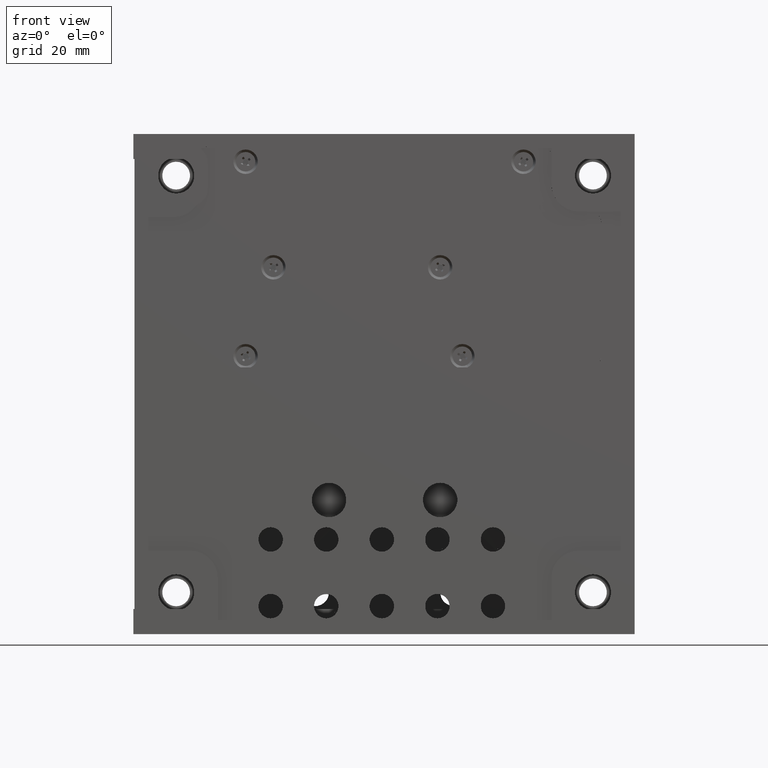
[diagram: clean part render]
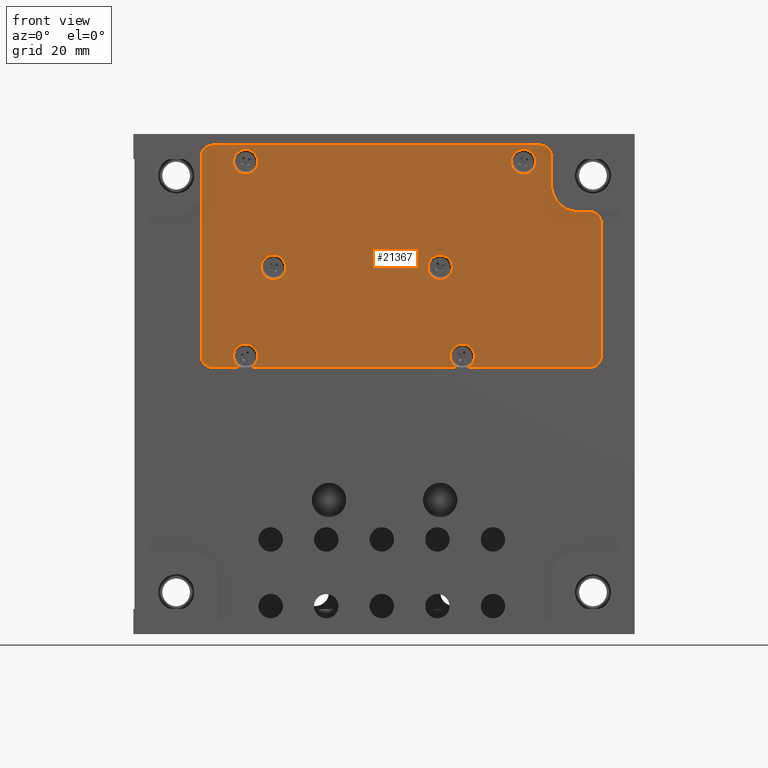
[diagram: same view with one face highlighted and labeled with its STEP entity id]
A machine part, front view. The second image highlights one B-rep face of the part: STEP entity #21367.
In plain terms, the highlighted planar face has unit normal (-0, -1, -0).
Its self-contained STEP definition (entity closure, byte-faithful):
#91 = CARTESIAN_POINT ( 'NONE',  ( 13.47279043342577154, -1.773152104537589898E-14, 87.93125104479028664 ) ) ;
#147 = VERTEX_POINT ( 'NONE', #19742 ) ;
#198 = CARTESIAN_POINT ( 'NONE',  ( 83.21914732197373610, -1.685304695499233557E-14, 48.39082520775689744 ) ) ;
#489 = ORIENTED_EDGE ( 'NONE', *, *, #25855, .T. ) ;
#700 = B_SPLINE_CURVE_WITH_KNOTS ( 'NONE', 3,
 ( #19382, #6346, #24060, #21720, #26705, #3707, #23776, #15444, #15287, #3841, #10585, #26271, #8406, #22015, #8249, #6490, #10881, #21582, #17193, #19525, #17348, #4275, #6197, #3985, #21863, #4134, #19676, #8537, #1942, #7215, #27144, #4710, #13384, #13817, #16150, #13968, #11765 ),
 .UNSPECIFIED., .F., .F.,
 ( 4, 1, 1, 1, 1, 2, 2, 1, 2, 2, 2, 1, 2, 2, 1, 1, 2, 2, 1, 1, 1, 2, 2, 4 ),
 ( 0.000000000000000000, 0.1249999999999968081, 0.1874999999999952260, 0.2187499999999951983, 0.2343749999999977796, 0.2421874999999981404, 0.2499999999999985012, 0.3125000000000098255, 0.3437500000000154876, 0.3750000000000210942, 0.5000000000000367484, 0.5625000000000446310, 0.5937500000000465183, 0.6250000000000485167, 0.6875000000000509592, 0.7187500000000521805, 0.7343750000000504041, 0.7500000000000486278, 0.8125000000000406342, 0.8437500000000366374, 0.8593750000000371925, 0.8671875000000355271, 0.8750000000000337508, 1.000000000000000000 ),
 .UNSPECIFIED. ) ;
#830 = CARTESIAN_POINT ( 'NONE',  ( 13.99999999999999822, -1.332480409083599529E-14, 48.00000000000000711 ) ) ;
#863 = VERTEX_POINT ( 'NONE', #17073 ) ;
#938 = CARTESIAN_POINT ( 'NONE',  ( 55.00000000000002132, -1.396098132513648451E-10, 63.79999999987012416 ) ) ;
#985 = CARTESIAN_POINT ( 'NONE',  ( 13.74549697485781863, -1.331199108243594114E-14, 47.99999999999999289 ) ) ;
#1024 = CARTESIAN_POINT ( 'NONE',  ( 55.00000000000002132, -1.396101792989891400E-10, 66.00000000000000000 ) ) ;
#1138 = ORIENTED_EDGE ( 'NONE', *, *, #26465, .T. ) ;
#1433 = VERTEX_POINT ( 'NONE', #28953 ) ;
#1489 = CARTESIAN_POINT ( 'NONE',  ( 75.00000000000001421, -1.639586193765947355E-14, 48.00000000000000711 ) ) ;
#1723 = CARTESIAN_POINT ( 'NONE',  ( 83.87109570898179811, -1.980750450096876624E-14, 74.70657440703342900 ) ) ;
#1766 = CARTESIAN_POINT ( 'NONE',  ( 12.06874895520969027, -1.339108743522042283E-14, 49.47279043341901428 ) ) ;
#1875 = CARTESIAN_POINT ( 'NONE',  ( 75.00000000000001421, -2.083675403616009340E-14, 88.00000000000000000 ) ) ;
#1942 = CARTESIAN_POINT ( 'NONE',  ( 75.21324006400163853, -1.990817581741827673E-14, 79.53941312836437305 ) ) ;
#2021 = EDGE_CURVE ( 'NONE', #27095, #5212, #28392, .T. ) ;
#2068 = ORIENTED_EDGE ( 'NONE', *, *, #19214, .T. ) ;
#2416 = CARTESIAN_POINT ( 'NONE',  ( 82.70657440703118368, -1.679816230040040171E-14, 48.12890429101817347 ) ) ;
#2548 = EDGE_LOOP ( 'NONE', ( #6741 ) ) ;
#2611 = CARTESIAN_POINT ( 'NONE',  ( 73.95432093515839256, -2.075749351636787746E-14, 87.76026810416848889 ) ) ;
#2746 = CARTESIAN_POINT ( 'NONE',  ( 12.13408272265252208, -1.337295475276198389E-14, 49.27983888886678443 ) ) ;
#2906 = CARTESIAN_POINT ( 'NONE',  ( 74.75812579856527407, -2.071273766250564018E-14, 86.99264234696104836 ) ) ;
#3207 = AXIS2_PLACEMENT_3D ( 'NONE', #1024, #12469, #9965 ) ;
#3326 = EDGE_CURVE ( 'NONE', #13170, #863, #4361, .T. ) ;
#3340 = ORIENTED_EDGE ( 'NONE', *, *, #12965, .T. ) ;
#3686 = CARTESIAN_POINT ( 'NONE',  ( 58.08348486088994633, -1.584347703848919033E-15, 47.99999999996163069 ) ) ;
#3707 = CARTESIAN_POINT ( 'NONE',  ( 78.28918674659972510, -1.970355024919308721E-14, 76.30146234016491746 ) ) ;
#3816 = DIRECTION ( 'NONE',  ( 1.000000000000000000, -5.034521060366369800E-17, 3.154042683473176857E-15 ) ) ;
#3841 = CARTESIAN_POINT ( 'NONE',  ( 78.00258072186043989, -1.970152339783371310E-14, 76.41317313197255601 ) ) ;
#3909 = ORIENTED_EDGE ( 'NONE', *, *, #15377, .T. ) ;
#3936 = CARTESIAN_POINT ( 'NONE',  ( 75.00000000000001421, -2.005959791892248382E-14, 80.99999999999998579 ) ) ;
#3985 = CARTESIAN_POINT ( 'NONE',  ( 75.46662622193423431, -1.984859154490314905E-14, 78.88782285870017574 ) ) ;
#4134 = CARTESIAN_POINT ( 'NONE',  ( 75.38266676738140859, -1.986582790992169766E-14, 79.08114727158037738 ) ) ;
#4153 = CARTESIAN_POINT ( 'NONE',  ( 11.99999999999999645, -1.344615827455369748E-14, 50.00000000000000711 ) ) ;
#4214 = FACE_BOUND ( 'NONE', #23144, .T. ) ;
#4248 = EDGE_CURVE ( 'NONE', #4328, #20135, #27242, .T. ) ;
#4275 = CARTESIAN_POINT ( 'NONE',  ( 75.72264362092202816, -1.980790091696618187E-14, 78.40521822324589607 ) ) ;
#4292 = EDGE_CURVE ( 'NONE', #5331, #5331, #11812, .T. ) ;
#4328 = VERTEX_POINT ( 'NONE', #19816 ) ;
#4348 = CARTESIAN_POINT ( 'NONE',  ( 83.89797362498134703, -1.980059801468136201E-14, 74.63217799797165242 ) ) ;
#4361 = B_SPLINE_CURVE_WITH_KNOTS ( 'NONE', 3,
 ( #15750, #20421, #24672, #6669, #22485, #24528, #2416, #11346, #20276, #198, #9150, #27022, #15906, #9297, #18246, #27180, #7110, #14589, #14441, #27740 ),
 .UNSPECIFIED., .F., .F.,
 ( 4, 1, 1, 1, 2, 2, 2, 1, 1, 1, 2, 2, 4 ),
 ( 0.000000000000000000, 0.1250000000000141553, 0.1875000000000150713, 0.2187500000000088818, 0.2343750000000046907, 0.2500000000000004996, 0.4999999999999775180, 0.6249999999999659162, 0.6874999999999663602, 0.7187499999999723554, 0.7343749999999753530, 0.7499999999999783507, 1.000000000000000000 ),
 .UNSPECIFIED. ) ;
#4664 = EDGE_CURVE ( 'NONE', #7172, #5723, #9453, .T. ) ;
#4710 = CARTESIAN_POINT ( 'NONE',  ( 75.09883824008163344, -1.995472319364198105E-14, 80.01055234077682599 ) ) ;
#4922 = CARTESIAN_POINT ( 'NONE',  ( 12.14627437278661048, -1.753369841235971371E-14, 86.75095753918218122 ) ) ;
#5093 = CARTESIAN_POINT ( 'NONE',  ( 13.04567906485008422, -1.330337418942100991E-14, 48.23973189582886789 ) ) ;
#5109 = CARTESIAN_POINT ( 'NONE',  ( 74.86591727734735002, -2.068791295302685615E-14, 86.72016111113390480 ) ) ;
#5174 = CARTESIAN_POINT ( 'NONE',  ( 84.00000000000000000, -1.973554869711784583E-14, 73.99999999999998579 ) ) ;
#5212 = VERTEX_POINT ( 'NONE', #17851 ) ;
#5251 = CARTESIAN_POINT ( 'NONE',  ( 74.15886946835729532, -2.075450205235319923E-14, 87.64056690267577210 ) ) ;
#5331 = VERTEX_POINT ( 'NONE', #11489 ) ;
#5336 = EDGE_CURVE ( 'NONE', #20135, #7172, #9482, .T. ) ;
#5344 = CARTESIAN_POINT ( 'NONE',  ( 73.00000000000001421, -2.073606361495276428E-14, 88.00000000000000000 ) ) ;
#5379 = CARTESIAN_POINT ( 'NONE',  ( 12.84113053165398455, -1.330636565343573389E-14, 48.35943309732071782 ) ) ;
#5723 = VERTEX_POINT ( 'NONE', #26122 ) ;
#5769 = DIRECTION ( 'NONE',  ( 5.034521060375131703E-17, 1.000000000000000000, 8.858338507444572427E-17 ) ) ;
#6075 = EDGE_CURVE ( 'NONE', #5212, #21855, #11805, .T. ) ;
#6197 = CARTESIAN_POINT ( 'NONE',  ( 75.59536401003116168, -1.982568444089025786E-14, 78.62311536826410929 ) ) ;
#6346 = CARTESIAN_POINT ( 'NONE',  ( 79.68218325767894328, -1.974021190880269630E-14, 76.00000000000000000 ) ) ;
#6490 = CARTESIAN_POINT ( 'NONE',  ( 76.70831755268964969, -1.972601329146627296E-14, 77.22066715319679986 ) ) ;
#6576 = CARTESIAN_POINT ( 'NONE',  ( 83.60917479223280679, -1.985122506245105929E-14, 75.21914732198223419 ) ) ;
#6669 = CARTESIAN_POINT ( 'NONE',  ( 82.52720956657763907, -1.678245355584600257E-14, 48.06874895520968494 ) ) ;
#6741 = ORIENTED_EDGE ( 'NONE', *, *, #4292, .T. ) ;
#6843 = CARTESIAN_POINT ( 'NONE',  ( 12.00000000000001243, -1.747121667503989402E-14, 86.25450302514823875 ) ) ;
#6869 = CARTESIAN_POINT ( 'NONE',  ( 74.31673294745328917, -2.074814780501436172E-14, 87.51174668256382461 ) ) ;
#7001 = CARTESIAN_POINT ( 'NONE',  ( 12.48825331743694989, -1.761372910285277122E-14, 87.31673294745054648 ) ) ;
#7110 = CARTESIAN_POINT ( 'NONE',  ( 83.85372562721336465, -1.698027618886186598E-14, 49.24904246081644743 ) ) ;
#7158 = CARTESIAN_POINT ( 'NONE',  ( 13.99999999999999822, -1.332480409083599529E-14, 48.00000000000000711 ) ) ;
#7168 = VERTEX_POINT ( 'NONE', #5174 ) ;
#7171 = DIRECTION ( 'NONE',  ( -0.000000000000000000, -1.110223024625156047E-16, 1.000000000000000000 ) ) ;
#7172 = VERTEX_POINT ( 'NONE', #3686 ) ;
#7215 = CARTESIAN_POINT ( 'NONE',  ( 75.14177547586808714, -1.993493295864755334E-14, 79.81282703076308849 ) ) ;
#7264 = EDGE_CURVE ( 'NONE', #7950, #4328, #25822, .T. ) ;
#7311 = CARTESIAN_POINT ( 'NONE',  ( 75.00000000000002842, -2.062881738386595909E-14, 86.12707314042290818 ) ) ;
#7468 = CARTESIAN_POINT ( 'NONE',  ( 73.25450302513954171, -2.074887662335268118E-14, 87.99999999999998579 ) ) ;
#7473 = DIRECTION ( 'NONE',  ( 0.000000000000000000, 1.110223024625156047E-16, -1.000000000000000000 ) ) ;
#7569 = ORIENTED_EDGE ( 'NONE', *, *, #12654, .T. ) ;
#7583 = ORIENTED_EDGE ( 'NONE', *, *, #6075, .T. ) ;
#7940 = DIRECTION ( 'NONE',  ( 1.000000000000000000, -5.034521060366355009E-17, -5.589441199178982237E-33 ) ) ;
#7950 = VERTEX_POINT ( 'NONE', #7158 ) ;
#8197 = VERTEX_POINT ( 'NONE', #12530 ) ;
#8249 = CARTESIAN_POINT ( 'NONE',  ( 76.97531761295968522, -1.971536516687703537E-14, 77.00368103130600161 ) ) ;
#8406 = CARTESIAN_POINT ( 'NONE',  ( 77.40649097500917719, -1.970606448304135280E-14, 76.72438401739992742 ) ) ;
#8537 = CARTESIAN_POINT ( 'NONE',  ( 75.29141834406505041, -1.988665606321617044E-14, 79.31012896102213006 ) ) ;
#8576 = EDGE_CURVE ( 'NONE', #22833, #7950, #14007, .T. ) ;
#8603 = DIRECTION ( 'NONE',  ( 0.000000000000000000, 7.124268779959754802E-17, -1.000000000000000000 ) ) ;
#8613 = CARTESIAN_POINT ( 'NONE',  ( 83.88206628694078404, -1.980475750632407388E-14, 74.67685685813283669 ) ) ;
#8756 = CARTESIAN_POINT ( 'NONE',  ( 83.75812579855211482, -1.983357692839041815E-14, 74.99264234698487996 ) ) ;
#8802 = ORIENTED_EDGE ( 'NONE', *, *, #4664, .T. ) ;
#9150 = CARTESIAN_POINT ( 'NONE',  ( 83.51174668257276323, -1.690024549837083427E-14, 48.68326705256190223 ) ) ;
#9297 = CARTESIAN_POINT ( 'NONE',  ( 83.81247144109561020, -1.696754159553837007E-14, 49.15304695001610469 ) ) ;
#9352 = ORIENTED_EDGE ( 'NONE', *, *, #8576, .T. ) ;
#9359 = CARTESIAN_POINT ( 'NONE',  ( 73.75095753918270702, -2.075763101275929369E-14, 87.85372562721337886 ) ) ;
#9395 = EDGE_LOOP ( 'NONE', ( #11087, #13776, #23256, #8802, #7569, #24224, #3340, #489, #2068, #14174, #1138, #22551, #10946, #7583, #26548, #9352 ) ) ;
#9453 = CIRCLE ( 'NONE', #25844, 2.200000000084412211 ) ;
#9482 = LINE ( 'NONE', #11840, #20431 ) ;
#9965 = DIRECTION ( 'NONE',  ( 0.000000000000000000, 1.663852837629003548E-16, -1.000000000000000000 ) ) ;
#10032 = CIRCLE ( 'NONE', #20331, 2.200000000073032425 ) ;
#10216 = VECTOR ( 'NONE', #7473, 1000.000000000000000 ) ;
#10382 = DIRECTION ( 'NONE',  ( 0.000000000000000000, 1.350251662292109313E-16, -1.000000000000000000 ) ) ;
#10423 = CARTESIAN_POINT ( 'NONE',  ( 12.01755292473439596, -1.341213638259763861E-14, 49.68559832687398625 ) ) ;
#10585 = CARTESIAN_POINT ( 'NONE',  ( 77.77292452172321191, -1.970157218384508316E-14, 76.51775460358842906 ) ) ;
#10633 = EDGE_CURVE ( 'NONE', #18965, #18965, #14476, .T. ) ;
#10669 = CARTESIAN_POINT ( 'NONE',  ( 84.00000000000000000, -1.973554869711784583E-14, 73.99999999999998579 ) ) ;
#10711 = DIRECTION ( 'NONE',  ( 5.034521060366346381E-17, 1.000000000000000000, 4.187010649148483918E-17 ) ) ;
#10816 = DIRECTION ( 'NONE',  ( -5.034521060366355009E-17, -1.000000000000000000, -1.110223024625156047E-16 ) ) ;
#10819 = CARTESIAN_POINT ( 'NONE',  ( 82.95432093514513383, -1.987833278225069274E-14, 75.76026810417467061 ) ) ;
#10824 = CARTESIAN_POINT ( 'NONE',  ( 75.00000000000001421, -2.083675403616009340E-14, 88.00000000000000000 ) ) ;
#10881 = CARTESIAN_POINT ( 'NONE',  ( 76.34254036475607563, -1.974819884153578943E-14, 77.58636556450248634 ) ) ;
#10946 = ORIENTED_EDGE ( 'NONE', *, *, #2021, .T. ) ;
#11087 = ORIENTED_EDGE ( 'NONE', *, *, #7264, .T. ) ;
#11243 = CARTESIAN_POINT ( 'NONE',  ( 12.18752855891182740, -1.754643300568479366E-14, 86.84695304999337395 ) ) ;
#11346 = CARTESIAN_POINT ( 'NONE',  ( 82.72016111113306636, -1.679942124728301169E-14, 48.13408272265258603 ) ) ;
#11489 = CARTESIAN_POINT ( 'NONE',  ( 70.00000000000001421, -2.045546946389255974E-11, 82.79999999992695336 ) ) ;
#11524 = CARTESIAN_POINT ( 'NONE',  ( 14.00000000000001243, -1.776569618933661830E-14, 88.00000000000004263 ) ) ;
#11535 = CARTESIAN_POINT ( 'NONE',  ( 12.12890429101819656, -1.337420247070296482E-14, 49.29342559296820525 ) ) ;
#11550 = CARTESIAN_POINT ( 'NONE',  ( 73.84695304999551979, -2.075788379223839487E-14, 87.81247144108871794 ) ) ;
#11690 = AXIS2_PLACEMENT_3D ( 'NONE', #1875, #10816, #13176 ) ;
#11765 = CARTESIAN_POINT ( 'NONE',  ( 75.00000000000001421, -2.005959791892248382E-14, 80.99999999999998579 ) ) ;
#11805 = B_SPLINE_CURVE_WITH_KNOTS ( 'NONE', 3,
 ( #11524, #13452, #14050, #91, #22957, #22513, #20174, #13742, #24998, #27056, #7001, #15933, #20026, #11243, #15645, #22654, #4922, #27207, #6843, #24708 ),
 .UNSPECIFIED., .F., .F.,
 ( 4, 1, 1, 1, 2, 2, 2, 1, 1, 1, 2, 2, 4 ),
 ( 0.000000000000000000, 0.1249999999999937828, 0.1874999999999919509, 0.2187499999999891198, 0.2343749999999899247, 0.2499999999999907296, 0.4999999999999971134, 0.6250000000000003331, 0.6874999999999970024, 0.7187499999999953371, 0.7343749999999942268, 0.7499999999999931166, 1.000000000000000000 ),
 .UNSPECIFIED. ) ;
#11812 = CIRCLE ( 'NONE', #23944, 2.200000000073032425 ) ;
#11840 = CARTESIAN_POINT ( 'NONE',  ( 75.00000000000001421, -1.639586193765947355E-14, 48.00000000000000711 ) ) ;
#11853 = CARTESIAN_POINT ( 'NONE',  ( 73.79984675237645320, -2.075781416986786777E-14, 87.83320560037746816 ) ) ;
#11856 = LINE ( 'NONE', #25029, #10216 ) ;
#12379 = LINE ( 'NONE', #23360, #19343 ) ;
#12469 = DIRECTION ( 'NONE',  ( 5.034521060366354392E-17, 1.000000000000000000, 1.663852837631633660E-16 ) ) ;
#12530 = CARTESIAN_POINT ( 'NONE',  ( 82.00000000000000000, -1.985690288083554801E-14, 75.99999999999998579 ) ) ;
#12638 = CARTESIAN_POINT ( 'NONE',  ( 75.00000000000001421, -1.639586193765947040E-14, 47.99999999999999289 ) ) ;
#12654 = EDGE_CURVE ( 'NONE', #5723, #13170, #25802, .T. ) ;
#12656 = CARTESIAN_POINT ( 'NONE',  ( 11.99999999999999645, -1.344615827455369748E-14, 50.00000000000000711 ) ) ;
#12809 = ORIENTED_EDGE ( 'NONE', *, *, #17422, .T. ) ;
#12814 = VERTEX_POINT ( 'NONE', #22016 ) ;
#12965 = EDGE_CURVE ( 'NONE', #863, #7168, #18446, .T. ) ;
#13112 = CARTESIAN_POINT ( 'NONE',  ( 25.00000000000001421, -8.276681301797908497E-11, 63.79999999987012416 ) ) ;
#13170 = VERTEX_POINT ( 'NONE', #21984 ) ;
#13176 = DIRECTION ( 'NONE',  ( 0.000000000000000000, 1.110223024625156047E-16, -1.000000000000000000 ) ) ;
#13384 = CARTESIAN_POINT ( 'NONE',  ( 75.09097941859513980, -1.995874216159460992E-14, 80.05031572054406297 ) ) ;
#13452 = CARTESIAN_POINT ( 'NONE',  ( 13.87292685958485272, -1.775929866532035396E-14, 88.00000000000004263 ) ) ;
#13468 = AXIS2_PLACEMENT_3D ( 'NONE', #23696, #28376, #8603 ) ;
#13546 = CARTESIAN_POINT ( 'NONE',  ( 75.00000000000001421, -2.083675403616009340E-14, 88.00000000000000000 ) ) ;
#13742 = CARTESIAN_POINT ( 'NONE',  ( 13.27983888886614139, -1.771455335393862795E-14, 87.86591727734698054 ) ) ;
#13767 = CARTESIAN_POINT ( 'NONE',  ( 74.60917479221269843, -2.073038579656831974E-14, 87.21914732199172704 ) ) ;
#13776 = ORIENTED_EDGE ( 'NONE', *, *, #4248, .T. ) ;
#13817 = CARTESIAN_POINT ( 'NONE',  ( 75.08695120616367547, -1.996088028654577234E-14, 80.07140090885725670 ) ) ;
#13968 = CARTESIAN_POINT ( 'NONE',  ( 75.00000000000002842, -2.002562484537608678E-14, 80.69399775727160318 ) ) ;
#14007 = B_SPLINE_CURVE_WITH_KNOTS ( 'NONE', 3,
 ( #12656, #21835, #10423, #1766, #19651, #21560, #11535, #2746, #15944, #21060, #20625, #5379, #5093, #14196, #20903, #23104, #16525, #14062, #985, #830 ),
 .UNSPECIFIED., .F., .F.,
 ( 4, 1, 1, 1, 2, 2, 2, 1, 1, 1, 2, 2, 4 ),
 ( 0.000000000000000000, 0.1250000000000240363, 0.1875000000000360545, 0.2187500000000451583, 0.2343750000000494049, 0.2500000000000536793, 0.5000000000000311973, 0.6250000000000198730, 0.6875000000000149880, 0.7187500000000132117, 0.7343750000000129896, 0.7500000000000127676, 1.000000000000000000 ),
 .UNSPECIFIED. ) ;
#14050 = CARTESIAN_POINT ( 'NONE',  ( 13.68559832688301192, -1.774791880477044314E-14, 87.98244707526565378 ) ) ;
#14062 = CARTESIAN_POINT ( 'NONE',  ( 13.50010050181657384, -1.330483325496985358E-14, 48.04680779929171308 ) ) ;
#14174 = ORIENTED_EDGE ( 'NONE', *, *, #19304, .T. ) ;
#14196 = CARTESIAN_POINT ( 'NONE',  ( 13.15304695000940427, -1.330298391355043570E-14, 48.18752855890974729 ) ) ;
#14441 = CARTESIAN_POINT ( 'NONE',  ( 83.99999999999995737, -1.704275792618432678E-14, 49.74549697487420730 ) ) ;
#14476 = CIRCLE ( 'NONE', #3207, 2.200000000129875843 ) ;
#14525 = DIRECTION ( 'NONE',  ( 5.034521060366334055E-17, 1.000000000000000000, 1.350251662292110053E-16 ) ) ;
#14589 = CARTESIAN_POINT ( 'NONE',  ( 83.95319220070825850, -1.701315689621787059E-14, 49.50010050183296073 ) ) ;
#14942 = CARTESIAN_POINT ( 'NONE',  ( 82.75095753918286334, -1.987847027864208373E-14, 75.85372562721335044 ) ) ;
#15083 = CARTESIAN_POINT ( 'NONE',  ( 83.86591727734817425, -1.980875221890951366E-14, 74.72016111113241266 ) ) ;
#15220 = FACE_BOUND ( 'NONE', #24877, .T. ) ;
#15224 = CARTESIAN_POINT ( 'NONE',  ( 82.25450302513611689, -1.986971588923528505E-14, 75.99999999999997158 ) ) ;
#15287 = CARTESIAN_POINT ( 'NONE',  ( 78.17914466848189647, -1.970265442310741380E-14, 76.34329416502727383 ) ) ;
#15377 = EDGE_CURVE ( 'NONE', #17623, #17623, #26088, .T. ) ;
#15444 = CARTESIAN_POINT ( 'NONE',  ( 78.19650738056770933, -1.970277928177363895E-14, 76.33654533426292232 ) ) ;
#15514 = FACE_OUTER_BOUND ( 'NONE', #9395, .T. ) ;
#15521 = CARTESIAN_POINT ( 'NONE',  ( 82.84695304998786014, -1.987872305812120070E-14, 75.81247144109232750 ) ) ;
#15645 = CARTESIAN_POINT ( 'NONE',  ( 12.16679439962282316, -1.754015929044664196E-14, 86.79984675237514580 ) ) ;
#15750 = CARTESIAN_POINT ( 'NONE',  ( 81.99999999999998579, -1.674827841188511286E-14, 47.99999999999998579 ) ) ;
#15906 = CARTESIAN_POINT ( 'NONE',  ( 83.76026810418028390, -1.695299317772675887E-14, 49.04567906486156659 ) ) ;
#15933 = CARTESIAN_POINT ( 'NONE',  ( 12.35943309732550688, -1.758971725481702715E-14, 87.15886946835236415 ) ) ;
#15944 = CARTESIAN_POINT ( 'NONE',  ( 12.24187420143690019, -1.334813004328199132E-14, 49.00735765302787428 ) ) ;
#16150 = CARTESIAN_POINT ( 'NONE',  ( 75.02782438597239434, -1.999335574154461204E-14, 80.39072600325137330 ) ) ;
#16246 = CARTESIAN_POINT ( 'NONE',  ( 74.98244707526562536, -2.064873132319160848E-14, 86.31440167313051859 ) ) ;
#16525 = CARTESIAN_POINT ( 'NONE',  ( 13.24904246081748127, -1.330323669302946904E-14, 48.14627437278660693 ) ) ;
#16923 = CARTESIAN_POINT ( 'NONE',  ( 70.00000000000001421, -2.045566434733972837E-11, 84.99999999999998579 ) ) ;
#16965 = AXIS2_PLACEMENT_3D ( 'NONE', #23703, #14525, #10382 ) ;
#17030 = DIRECTION ( 'NONE',  ( 1.000000000000000000, -5.034521060366355009E-17, -5.589441199178982237E-33 ) ) ;
#17073 = CARTESIAN_POINT ( 'NONE',  ( 83.99999999999998579, -1.707101343801747013E-14, 49.99999999999998579 ) ) ;
#17128 = EDGE_CURVE ( 'NONE', #1433, #27095, #20079, .T. ) ;
#17193 = CARTESIAN_POINT ( 'NONE',  ( 76.01268661931914039, -1.977550016810835843E-14, 77.98185261423131465 ) ) ;
#17280 = CARTESIAN_POINT ( 'NONE',  ( 82.76820000069635341, -1.987855438006855314E-14, 75.84666421781751922 ) ) ;
#17348 = CARTESIAN_POINT ( 'NONE',  ( 75.86121185539904843, -1.979135148414770103E-14, 78.19331773798846541 ) ) ;
#17413 = FACE_BOUND ( 'NONE', #22502, .T. ) ;
#17422 = EDGE_CURVE ( 'NONE', #12814, #12814, #10032, .T. ) ;
#17557 = VECTOR ( 'NONE', #7171, 1000.000000000000000 ) ;
#17623 = VERTEX_POINT ( 'NONE', #13112 ) ;
#17684 = CARTESIAN_POINT ( 'NONE',  ( 20.00000000000002487, -2.046945731046296391E-11, 85.00000000000000000 ) ) ;
#17851 = CARTESIAN_POINT ( 'NONE',  ( 14.00000000000001243, -1.776569618933661830E-14, 88.00000000000004263 ) ) ;
#18246 = CARTESIAN_POINT ( 'NONE',  ( 83.83320560038166036, -1.697381531077596010E-14, 49.20015324763055986 ) ) ;
#18296 = CARTESIAN_POINT ( 'NONE',  ( 74.88206628694082667, -2.068391824044105664E-14, 86.67685685813086138 ) ) ;
#18446 = LINE ( 'NONE', #20786, #17557 ) ;
#18589 = B_SPLINE_CURVE_WITH_KNOTS ( 'NONE', 3,
 ( #10669, #21952, #22087, #28538, #4348, #8613, #1723, #15083, #8756, #6576, #22228, #26054, #10819, #15521, #21796, #17280, #14942, #24293, #15224, #24430 ),
 .UNSPECIFIED., .F., .F.,
 ( 4, 1, 1, 1, 2, 2, 2, 1, 1, 1, 2, 2, 4 ),
 ( 0.000000000000000000, 0.1249999999999884259, 0.1874999999999894529, 0.2187499999999852895, 0.2343749999999874822, 0.2499999999999896749, 0.4999999999999843459, 0.6249999999999816813, 0.6874999999999784617, 0.7187499999999769074, 0.7343749999999819034, 0.7499999999999867883, 1.000000000000000000 ),
 .UNSPECIFIED. ) ;
#18727 = DIRECTION ( 'NONE',  ( 1.000000000000000000, -5.034521060366355009E-17, -5.589441199178982237E-33 ) ) ;
#18935 = CARTESIAN_POINT ( 'NONE',  ( 12.00000000000001066, -1.744296116320426418E-14, 86.00000000000001421 ) ) ;
#18965 = VERTEX_POINT ( 'NONE', #938 ) ;
#19179 = CARTESIAN_POINT ( 'NONE',  ( 73.00000000000001421, -2.073606361495276428E-14, 88.00000000000000000 ) ) ;
#19214 = EDGE_CURVE ( 'NONE', #8197, #147, #12379, .T. ) ;
#19304 = EDGE_CURVE ( 'NONE', #147, #20125, #700, .T. ) ;
#19343 = VECTOR ( 'NONE', #21293, 1000.000000000000000 ) ;
#19382 = CARTESIAN_POINT ( 'NONE',  ( 80.00000000000000000, -1.975621245962822205E-14, 75.99999999999998579 ) ) ;
#19495 = CARTESIAN_POINT ( 'NONE',  ( 59.00000000000001421, -3.811013586441148413E-15, 49.99999999999999289 ) ) ;
#19525 = CARTESIAN_POINT ( 'NONE',  ( 75.91128857143459641, -1.978581865232374161E-14, 78.12077416376538963 ) ) ;
#19651 = CARTESIAN_POINT ( 'NONE',  ( 12.10202637501865297, -1.338110895699076663E-14, 49.36782200203359849 ) ) ;
#19676 = CARTESIAN_POINT ( 'NONE',  ( 75.36596853234352977, -1.986950901153670408E-14, 79.12187582498270899 ) ) ;
#19742 = CARTESIAN_POINT ( 'NONE',  ( 80.00000000000000000, -1.975621245962822205E-14, 75.99999999999998579 ) ) ;
#19816 = CARTESIAN_POINT ( 'NONE',  ( 19.08348486105010977, 5.124358180300336346E-16, 48.00000000001332268 ) ) ;
#20017 = DIRECTION ( 'NONE',  ( 0.000000000000000000, 1.271400595201260951E-16, -1.000000000000000000 ) ) ;
#20026 = CARTESIAN_POINT ( 'NONE',  ( 12.23973189583245436, -1.756098142349741145E-14, 86.95432093515468353 ) ) ;
#20079 = B_SPLINE_CURVE_WITH_KNOTS ( 'NONE', 3,
 ( #25026, #7311, #16246, #22980, #22537, #18296, #27522, #5109, #2906, #13767, #6869, #5251, #2611, #11550, #11853, #20483, #9359, #20775, #7468, #19179 ),
 .UNSPECIFIED., .F., .F.,
 ( 4, 1, 1, 1, 2, 2, 2, 1, 1, 1, 2, 2, 4 ),
 ( 0.000000000000000000, 0.1249999999999246159, 0.1874999999998937517, 0.2187499999998802624, 0.2343749999998822331, 0.2499999999998842037, 0.4999999999999951150, 0.6250000000000593969, 0.6875000000000895950, 0.7187500000000962563, 0.7343750000000994760, 0.7500000000001026956, 1.000000000000000000 ),
 .UNSPECIFIED. ) ;
#20125 = VERTEX_POINT ( 'NONE', #3936 ) ;
#20135 = VERTEX_POINT ( 'NONE', #28406 ) ;
#20174 = CARTESIAN_POINT ( 'NONE',  ( 13.29342559296946114, -1.771581230082137993E-14, 87.87109570898185495 ) ) ;
#20251 = DIRECTION ( 'NONE',  ( -0.000000000000000000, -1.110223024625156047E-16, 1.000000000000000000 ) ) ;
#20276 = CARTESIAN_POINT ( 'NONE',  ( 82.99264234697437814, -1.682510663064731242E-14, 48.24187420143556437 ) ) ;
#20278 = EDGE_CURVE ( 'NONE', #21855, #22833, #11856, .T. ) ;
#20331 = AXIS2_PLACEMENT_3D ( 'NONE', #17684, #22210, #20017 ) ;
#20348 = VECTOR ( 'NONE', #7940, 1000.000000000000000 ) ;
#20421 = CARTESIAN_POINT ( 'NONE',  ( 82.12707314041773543, -1.675467593590151288E-14, 47.99999999999997158 ) ) ;
#20431 = VECTOR ( 'NONE', #18727, 1000.000000000000000 ) ;
#20483 = CARTESIAN_POINT ( 'NONE',  ( 73.76820000069881189, -2.075771511418576310E-14, 87.84666421781639656 ) ) ;
#20625 = CARTESIAN_POINT ( 'NONE',  ( 12.68326705255314302, -1.331271990077450514E-14, 48.48825331743420008 ) ) ;
#20775 = CARTESIAN_POINT ( 'NONE',  ( 73.49989949818082380, -2.075603445081877505E-14, 87.95319220070828692 ) ) ;
#20786 = CARTESIAN_POINT ( 'NONE',  ( 83.99999999999998579, -2.128986093159306498E-14, 88.00000000000000000 ) ) ;
#20903 = CARTESIAN_POINT ( 'NONE',  ( 13.20015324762653286, -1.330305353592093756E-14, 48.16679439962157261 ) ) ;
#21060 = CARTESIAN_POINT ( 'NONE',  ( 12.39082520777442120, -1.333048190922023316E-14, 48.78085267801230174 ) ) ;
#21293 = DIRECTION ( 'NONE',  ( -1.000000000000000000, 5.034521060366355009E-17, 5.589441199178982237E-33 ) ) ;
#21298 = DIRECTION ( 'NONE',  ( 0.000000000000000000, 8.858338507447658846E-17, -1.000000000000000000 ) ) ;
#21367 = ADVANCED_FACE ( 'NONE', ( #17413, #4214, #26337, #15220, #15514 ), #24131, .T. ) ;
#21560 = CARTESIAN_POINT ( 'NONE',  ( 12.11793371305920530, -1.337694946534783388E-14, 49.32314314187029680 ) ) ;
#21582 = CARTESIAN_POINT ( 'NONE',  ( 76.16991561150264545, -1.976075326699999441E-14, 77.77772580970479055 ) ) ;
#21720 = CARTESIAN_POINT ( 'NONE',  ( 78.68180035125527638, -1.970892908894268098E-14, 76.17187238802424076 ) ) ;
#21796 = CARTESIAN_POINT ( 'NONE',  ( 82.79984675237182046, -1.987865343575066728E-14, 75.83320560037965663 ) ) ;
#21835 = CARTESIAN_POINT ( 'NONE',  ( 12.00000000000000000, -1.343205032192309079E-14, 49.87292685957969951 ) ) ;
#21855 = VERTEX_POINT ( 'NONE', #18935 ) ;
#21863 = CARTESIAN_POINT ( 'NONE',  ( 75.41568611802324540, -1.985887165935899814E-14, 79.00351767344027110 ) ) ;
#21952 = CARTESIAN_POINT ( 'NONE',  ( 84.00000000000000000, -1.974965664974920982E-14, 74.12707314042717144 ) ) ;
#21984 = CARTESIAN_POINT ( 'NONE',  ( 81.99999999999998579, -1.674827841188511286E-14, 47.99999999999998579 ) ) ;
#22015 = CARTESIAN_POINT ( 'NONE',  ( 77.33610963810291139, -1.970734767892649586E-14, 76.76785779705687673 ) ) ;
#22016 = CARTESIAN_POINT ( 'NONE',  ( 20.00000000000002487, -2.046917760233201123E-11, 82.79999999992696758 ) ) ;
#22087 = CARTESIAN_POINT ( 'NONE',  ( 83.98244707526559694, -1.976957058907524103E-14, 74.31440167313803613 ) ) ;
#22137 = VECTOR ( 'NONE', #26491, 1000.000000000000000 ) ;
#22155 = LINE ( 'NONE', #13546, #28861 ) ;
#22210 = DIRECTION ( 'NONE',  ( 5.034521060375177925E-17, 1.000000000000000000, 1.271400595194583244E-16 ) ) ;
#22228 = CARTESIAN_POINT ( 'NONE',  ( 83.31673294744324210, -1.986898707089716123E-14, 75.51174668256849998 ) ) ;
#22485 = CARTESIAN_POINT ( 'NONE',  ( 82.63217799796444751, -1.679143274939811440E-14, 48.10202637501864587 ) ) ;
#22502 = EDGE_LOOP ( 'NONE', ( #3909 ) ) ;
#22513 = CARTESIAN_POINT ( 'NONE',  ( 13.32314314187269311, -1.771852641590388970E-14, 87.88206628694085509 ) ) ;
#22537 = CARTESIAN_POINT ( 'NONE',  ( 74.89797362498137545, -2.067975874879820909E-14, 86.63217799796838392 ) ) ;
#22551 = ORIENTED_EDGE ( 'NONE', *, *, #17128, .T. ) ;
#22654 = CARTESIAN_POINT ( 'NONE',  ( 12.15333578218376864, -1.753596821828059599E-14, 86.76820000069812977 ) ) ;
#22833 = VERTEX_POINT ( 'NONE', #4153 ) ;
#22852 = VECTOR ( 'NONE', #17030, 1000.000000000000000 ) ;
#22957 = CARTESIAN_POINT ( 'NONE',  ( 13.36782200203755977, -1.772254185182372405E-14, 87.89797362498141808 ) ) ;
#22980 = CARTESIAN_POINT ( 'NONE',  ( 74.93125104479031506, -2.066978027056871382E-14, 86.52720956658438922 ) ) ;
#23104 = CARTESIAN_POINT ( 'NONE',  ( 13.23179999930277440, -1.330315259160301857E-14, 48.15333578218312027 ) ) ;
#23144 = EDGE_LOOP ( 'NONE', ( #27695 ) ) ;
#23256 = ORIENTED_EDGE ( 'NONE', *, *, #5336, .T. ) ;
#23360 = CARTESIAN_POINT ( 'NONE',  ( 75.00000000000001421, -1.950448640660990555E-14, 75.99999999999998579 ) ) ;
#23696 = CARTESIAN_POINT ( 'NONE',  ( 25.00000000000001421, -8.276696975189225253E-11, 66.00000000000000000 ) ) ;
#23703 = CARTESIAN_POINT ( 'NONE',  ( 20.00000000000001066, 7.307362346929766227E-16, 50.00000000000000711 ) ) ;
#23776 = CARTESIAN_POINT ( 'NONE',  ( 78.23355317897031114, -1.970307113764807737E-14, 76.32237500439923394 ) ) ;
#23944 = AXIS2_PLACEMENT_3D ( 'NONE', #16923, #5769, #21298 ) ;
#24060 = CARTESIAN_POINT ( 'NONE',  ( 79.21376150746192479, -1.972150103243409945E-14, 76.04388231183597213 ) ) ;
#24131 = PLANE ( 'NONE',  #11690 ) ;
#24224 = ORIENTED_EDGE ( 'NONE', *, *, #3326, .T. ) ;
#24293 = CARTESIAN_POINT ( 'NONE',  ( 82.49989949817737056, -1.987687371670138523E-14, 75.95319220070825850 ) ) ;
#24430 = CARTESIAN_POINT ( 'NONE',  ( 82.00000000000000000, -1.985690288083554801E-14, 75.99999999999998579 ) ) ;
#24528 = CARTESIAN_POINT ( 'NONE',  ( 82.67685685812853080, -1.679544818531791719E-14, 48.11793371305918043 ) ) ;
#24672 = CARTESIAN_POINT ( 'NONE',  ( 82.31440167312155154, -1.676605579645152783E-14, 48.01755292473438175 ) ) ;
#24708 = CARTESIAN_POINT ( 'NONE',  ( 12.00000000000001066, -1.744296116320426418E-14, 86.00000000000001421 ) ) ;
#24877 = EDGE_LOOP ( 'NONE', ( #12809 ) ) ;
#24998 = CARTESIAN_POINT ( 'NONE',  ( 13.00735765303820735, -1.768886797057585761E-14, 87.75812579857168316 ) ) ;
#25026 = CARTESIAN_POINT ( 'NONE',  ( 75.00000000000001421, -2.061470943123506525E-14, 86.00000000000000000 ) ) ;
#25029 = CARTESIAN_POINT ( 'NONE',  ( 12.00000000000001066, -1.766500576812929234E-14, 88.00000000000000000 ) ) ;
#25802 = LINE ( 'NONE', #12638, #20348 ) ;
#25822 = LINE ( 'NONE', #1489, #22852 ) ;
#25844 = AXIS2_PLACEMENT_3D ( 'NONE', #19495, #10711, #3816 ) ;
#25855 = EDGE_CURVE ( 'NONE', #7168, #8197, #18589, .T. ) ;
#26054 = CARTESIAN_POINT ( 'NONE',  ( 83.15886946833970228, -1.987534131823601767E-14, 75.64056690268402861 ) ) ;
#26088 = CIRCLE ( 'NONE', #13468, 2.200000000129875843 ) ;
#26122 = CARTESIAN_POINT ( 'NONE',  ( 59.91651513909641835, 5.686698485839852073E-12, 47.99999999996163069 ) ) ;
#26271 = CARTESIAN_POINT ( 'NONE',  ( 77.55191191462317590, -1.970395619942091131E-14, 76.63945034873756867 ) ) ;
#26337 = FACE_BOUND ( 'NONE', #2548, .T. ) ;
#26465 = EDGE_CURVE ( 'NONE', #20125, #1433, #22155, .T. ) ;
#26491 = DIRECTION ( 'NONE',  ( -1.000000000000000000, 5.034521060366355009E-17, 5.589441199178982237E-33 ) ) ;
#26548 = ORIENTED_EDGE ( 'NONE', *, *, #20278, .T. ) ;
#26705 = CARTESIAN_POINT ( 'NONE',  ( 78.41945249458018452, -1.970495747026495578E-14, 76.25506593754661822 ) ) ;
#27022 = CARTESIAN_POINT ( 'NONE',  ( 83.64056690269146088, -1.692425734640796358E-14, 48.84113053166930030 ) ) ;
#27056 = CARTESIAN_POINT ( 'NONE',  ( 12.78085267800684477, -1.766092764622566270E-14, 87.60917479221832593 ) ) ;
#27095 = VERTEX_POINT ( 'NONE', #5344 ) ;
#27144 = CARTESIAN_POINT ( 'NONE',  ( 75.11097903311980417, -1.994872421959390278E-14, 79.95101290875402356 ) ) ;
#27180 = CARTESIAN_POINT ( 'NONE',  ( 83.84666421781855661, -1.697800638294159587E-14, 49.23179999930488293 ) ) ;
#27207 = CARTESIAN_POINT ( 'NONE',  ( 12.04680779929172374, -1.750081770500635021E-14, 86.49989949818949242 ) ) ;
#27242 = CIRCLE ( 'NONE', #16965, 2.199999999970704501 ) ;
#27522 = CARTESIAN_POINT ( 'NONE',  ( 74.87109570898179811, -2.068666523508586260E-14, 86.70657440703237739 ) ) ;
#27695 = ORIENTED_EDGE ( 'NONE', *, *, #10633, .T. ) ;
#27740 = CARTESIAN_POINT ( 'NONE',  ( 83.99999999999998579, -1.707101343801747013E-14, 49.99999999999998579 ) ) ;
#28376 = DIRECTION ( 'NONE',  ( 5.034521060366354392E-17, 1.000000000000000000, 7.124268779681514932E-17 ) ) ;
#28392 = LINE ( 'NONE', #10824, #22137 ) ;
#28406 = CARTESIAN_POINT ( 'NONE',  ( 20.91651513894991155, 6.873979710519989282E-16, 48.00000000001332268 ) ) ;
#28538 = CARTESIAN_POINT ( 'NONE',  ( 83.93125104479027243, -1.979061953645211602E-14, 74.52720956658998830 ) ) ;
#28861 = VECTOR ( 'NONE', #20251, 1000.000000000000000 ) ;
#28953 = CARTESIAN_POINT ( 'NONE',  ( 75.00000000000001421, -2.061470943123506525E-14, 86.00000000000000000 ) ) ;